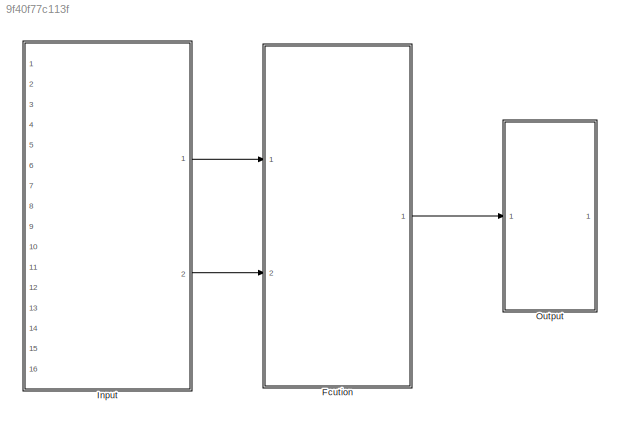
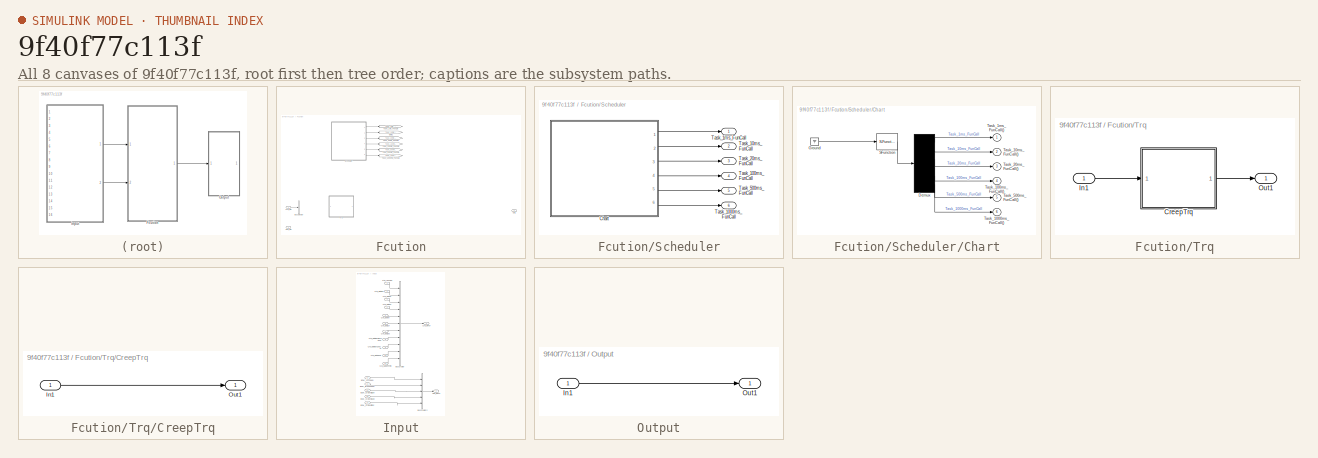
[diagram: thumbnail index - all 8 canvases of the model, root first then tree order]
MODEL slx_9f40f77c113f
KIND model
CONFIG AbsTol = auto
CONFIG EnableMultiTasking = off
CONFIG FixedStep = auto
CONFIG MaxStep = auto
CONFIG MinStep = auto
CONFIG RelTol = 1e-3
CONFIG SampleTimeConstraint = Unconstrained
CONFIG Solver = FixedStepAuto
CONFIG SolverName = FixedStepAuto
CONFIG StartTime = 0.0
CONFIG StopTime = 10.0
BLOCK [SubSystem] Fcution
  Ports = [2, 1]
  RequestExecContextInheritance = off
BLOCK [BusSelector] Fcution/Bus Selector
  OutputAsBus = off
  OutputSignals = signal1,signal2
  Ports = [1, 2]
BLOCK [Inport] Fcution/CAN_INP
  IconDisplay = Port number
BLOCK [Goto] Fcution/Goto1
  GotoTag = Task_10ms_FunCall
  IconDisplay = Tag and signal name
  TagVisibility = global
BLOCK [Outport] Fcution/Out1
  IconDisplay = Port number
BLOCK [SubSystem] Fcution/Scheduler
  Ports = [0, 6]
  RequestExecContextInheritance = off
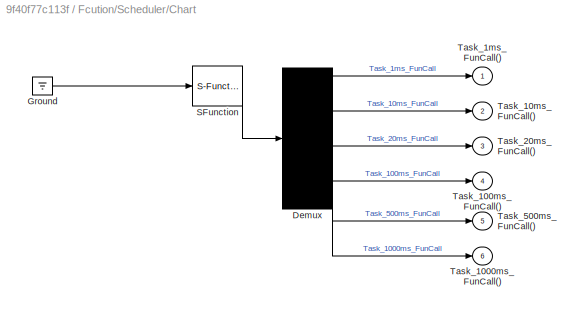
BLOCK [SubSystem] Fcution/Scheduler/Chart
  ErrorFcn = Stateflow.Translate.translate
  PermitHierarchicalResolution = ExplicitOnly
  Ports = [0, 6]
  RequestExecContextInheritance = off
  SFBlockType = Chart
  TreatAsAtomicUnit = on
BLOCK [Demux] Fcution/Scheduler/Chart/ Demux 
  Outputs = 6
  Ports = [1, 6]
BLOCK [Ground] Fcution/Scheduler/Chart/ Ground 
BLOCK [S-Function] Fcution/Scheduler/Chart/ SFunction 
  EnableBusSupport = off
  FunctionName = sf_sfun
  PortCounts = [1 1]
  Ports = [1, 1]
  SFcnIsStateOwnerBlock = off
  SFunctionDeploymentMode = off
  Tag = Stateflow S-Function VCU_ASW 3
BLOCK [Outport] Fcution/Scheduler/Chart/Task_1000ms_FunCall()
  IconDisplay = Port number
  Port = 6
BLOCK [Outport] Fcution/Scheduler/Chart/Task_100ms_FunCall()
  IconDisplay = Port number
  Port = 4
BLOCK [Outport] Fcution/Scheduler/Chart/Task_10ms_FunCall()
  IconDisplay = Port number
  Port = 2
BLOCK [Outport] Fcution/Scheduler/Chart/Task_1ms_FunCall()
  IconDisplay = Port number
BLOCK [Outport] Fcution/Scheduler/Chart/Task_20ms_FunCall()
  IconDisplay = Port number
  Port = 3
BLOCK [Outport] Fcution/Scheduler/Chart/Task_500ms_FunCall()
  IconDisplay = Port number
  Port = 5
BLOCK [Outport] Fcution/Scheduler/Task_1000ms_FunCall
  IconDisplay = Port number
  Port = 6
BLOCK [Outport] Fcution/Scheduler/Task_100ms_FunCall
  IconDisplay = Port number
  Port = 4
BLOCK [Outport] Fcution/Scheduler/Task_10ms_FunCall
  IconDisplay = Port number
  Port = 2
BLOCK [Outport] Fcution/Scheduler/Task_1ms_FunCall
  IconDisplay = Port number
BLOCK [Outport] Fcution/Scheduler/Task_20ms_FunCall
  IconDisplay = Port number
  Port = 3
BLOCK [Outport] Fcution/Scheduler/Task_500ms_FunCall
  IconDisplay = Port number
  Port = 5
BLOCK [Goto] Fcution/Task_1000ms_FunCall
  GotoTag = Task_1000ms_FunCall
  IconDisplay = Tag and signal name
  TagVisibility = global
BLOCK [Goto] Fcution/Task_100ms_FunCall
  GotoTag = Task_100ms_FunCall
  IconDisplay = Tag and signal name
  TagVisibility = global
BLOCK [Goto] Fcution/Task_1ms_FunCall
  GotoTag = Task_1ms_FunCall
  IconDisplay = Tag and signal name
  TagVisibility = global
BLOCK [Goto] Fcution/Task_20ms_FunCall
  GotoTag = Task_20ms_FunCall
  IconDisplay = Tag and signal name
  TagVisibility = global
BLOCK [Goto] Fcution/Task_500ms_FunCall
  GotoTag = Task_500ms_FunCall
  IconDisplay = Tag and signal name
  TagVisibility = global
BLOCK [SubSystem] Fcution/Trq
  Ports = [1, 1]
  RequestExecContextInheritance = off
  TreatAsAtomicUnit = on
BLOCK [SubSystem] Fcution/Trq/CreepTrq
  Ports = [1, 1]
  RequestExecContextInheritance = off
BLOCK [Inport] Fcution/Trq/CreepTrq/In1
  IconDisplay = Port number
BLOCK [Outport] Fcution/Trq/CreepTrq/Out1
  IconDisplay = Port number
BLOCK [Inport] Fcution/Trq/In1
  IconDisplay = Port number
BLOCK [Outport] Fcution/Trq/Out1
  IconDisplay = Port number
BLOCK [Inport] Fcution/VEH_INP
  IconDisplay = Port number
  Port = 2
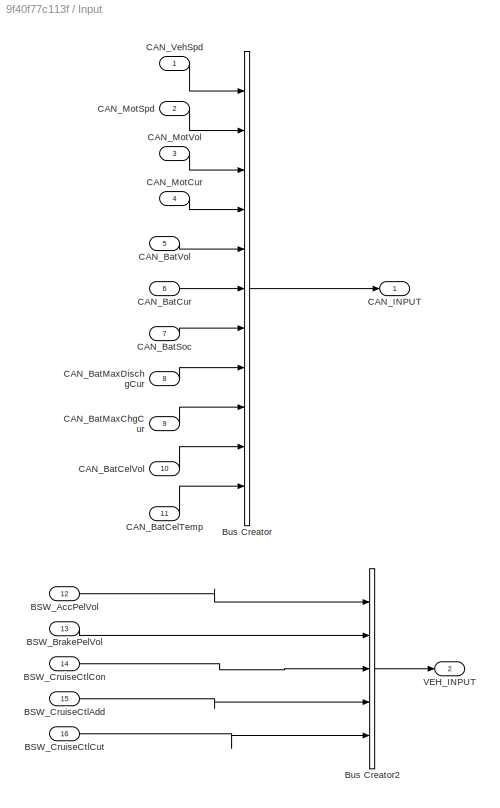
BLOCK [SubSystem] Input
  Ports = [16, 2]
  RequestExecContextInheritance = off
BLOCK [Inport] Input/BSW_AccPelVol
  IconDisplay = Port number
  Port = 12
BLOCK [Inport] Input/BSW_BrakePelVol
  IconDisplay = Port number
  Port = 13
BLOCK [Inport] Input/BSW_CruiseCtlAdd
  IconDisplay = Port number
  Port = 15
BLOCK [Inport] Input/BSW_CruiseCtlCon
  IconDisplay = Port number
  Port = 14
BLOCK [Inport] Input/BSW_CruiseCtlCut
  IconDisplay = Port number
  Port = 16
BLOCK [BusCreator] Input/Bus Creator
  DisplayOption = bar
  InheritFromInputs = on
  Inputs = 11
  Ports = [11, 1]
BLOCK [BusCreator] Input/Bus Creator2
  DisplayOption = bar
  InheritFromInputs = on
  Inputs = 5
  Ports = [5, 1]
BLOCK [Inport] Input/CAN_BatCelTemp
  IconDisplay = Port number
  Port = 11
BLOCK [Inport] Input/CAN_BatCelVol
  IconDisplay = Port number
  Port = 10
BLOCK [Inport] Input/CAN_BatCur
  IconDisplay = Port number
  Port = 6
BLOCK [Inport] Input/CAN_BatMaxChgCur
  IconDisplay = Port number
  Port = 9
BLOCK [Inport] Input/CAN_BatMaxDischgCur
  IconDisplay = Port number
  Port = 8
BLOCK [Inport] Input/CAN_BatSoc
  IconDisplay = Port number
  Port = 7
BLOCK [Inport] Input/CAN_BatVol
  IconDisplay = Port number
  Port = 5
BLOCK [Outport] Input/CAN_INPUT
  IconDisplay = Port number
BLOCK [Inport] Input/CAN_MotCur
  IconDisplay = Port number
  Port = 4
BLOCK [Inport] Input/CAN_MotSpd
  IconDisplay = Port number
  Port = 2
BLOCK [Inport] Input/CAN_MotVol
  IconDisplay = Port number
  Port = 3
BLOCK [Inport] Input/CAN_VehSpd
  IconDisplay = Port number
BLOCK [Outport] Input/VEH_INPUT
  IconDisplay = Port number
  Port = 2
BLOCK [SubSystem] Output
  Ports = [1, 1]
  RequestExecContextInheritance = off
BLOCK [Inport] Output/In1
  IconDisplay = Port number
BLOCK [Outport] Output/Out1
  IconDisplay = Port number
LINE Fcution/CAN_INP:1 -> Fcution/Bus Selector:1
LINE Fcution/Scheduler/Chart:1 -> Fcution/Scheduler/Task_1ms_FunCall:1
LINE Fcution/Scheduler/Chart:2 -> Fcution/Scheduler/Task_10ms_FunCall:1
LINE Fcution/Scheduler/Chart:3 -> Fcution/Scheduler/Task_20ms_FunCall:1
LINE Fcution/Scheduler/Chart:4 -> Fcution/Scheduler/Task_100ms_FunCall:1
LINE Fcution/Scheduler/Chart:5 -> Fcution/Scheduler/Task_500ms_FunCall:1
LINE Fcution/Scheduler/Chart:6 -> Fcution/Scheduler/Task_1000ms_FunCall:1
LINE Fcution/Scheduler:1 -> Fcution/Task_1ms_FunCall:1
LINE Fcution/Scheduler:2 -> Fcution/Goto1:1
LINE Fcution/Scheduler:3 -> Fcution/Task_20ms_FunCall:1
LINE Fcution/Scheduler:4 -> Fcution/Task_100ms_FunCall:1
LINE Fcution/Scheduler:5 -> Fcution/Task_500ms_FunCall:1
LINE Fcution/Scheduler:6 -> Fcution/Task_1000ms_FunCall:1
LINE Fcution/Trq/CreepTrq/In1:1 -> Fcution/Trq/CreepTrq/Out1:1
LINE Fcution/Trq/CreepTrq:1 -> Fcution/Trq/Out1:1
LINE Fcution/Trq/In1:1 -> Fcution/Trq/CreepTrq:1
LINE Fcution:1 -> Output:1
LINE Input/BSW_AccPelVol:1 -> Input/Bus Creator2:1
LINE Input/BSW_BrakePelVol:1 -> Input/Bus Creator2:2
LINE Input/BSW_CruiseCtlAdd:1 -> Input/Bus Creator2:4
LINE Input/BSW_CruiseCtlCon:1 -> Input/Bus Creator2:3
LINE Input/BSW_CruiseCtlCut:1 -> Input/Bus Creator2:5
LINE Input/Bus Creator2:1 -> Input/VEH_INPUT:1
LINE Input/Bus Creator:1 -> Input/CAN_INPUT:1
LINE Input/CAN_BatCelTemp:1 -> Input/Bus Creator:11
LINE Input/CAN_BatCelVol:1 -> Input/Bus Creator:10
LINE Input/CAN_BatCur:1 -> Input/Bus Creator:6
LINE Input/CAN_BatMaxChgCur:1 -> Input/Bus Creator:9
LINE Input/CAN_BatMaxDischgCur:1 -> Input/Bus Creator:8
LINE Input/CAN_BatSoc:1 -> Input/Bus Creator:7
LINE Input/CAN_BatVol:1 -> Input/Bus Creator:5
LINE Input/CAN_MotCur:1 -> Input/Bus Creator:4
LINE Input/CAN_MotSpd:1 -> Input/Bus Creator:2
LINE Input/CAN_MotVol:1 -> Input/Bus Creator:3
LINE Input/CAN_VehSpd:1 -> Input/Bus Creator:1
LINE Input:1 -> Fcution:1
LINE Input:2 -> Fcution:2
LINE Output/In1:1 -> Output/Out1:1
CHART Fcution/Scheduler/Chart states=0 transitions=27
